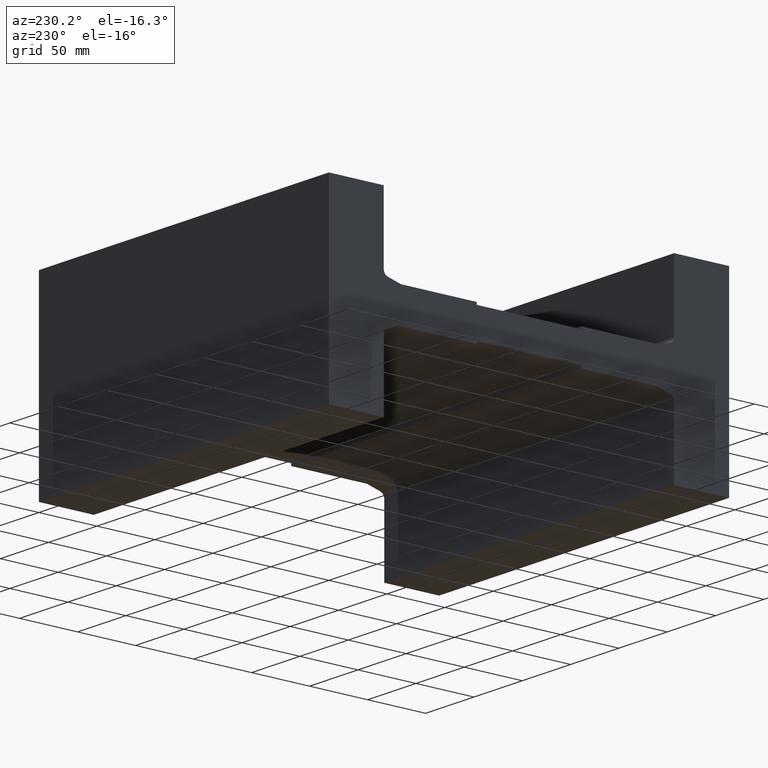
[diagram: clean part render]
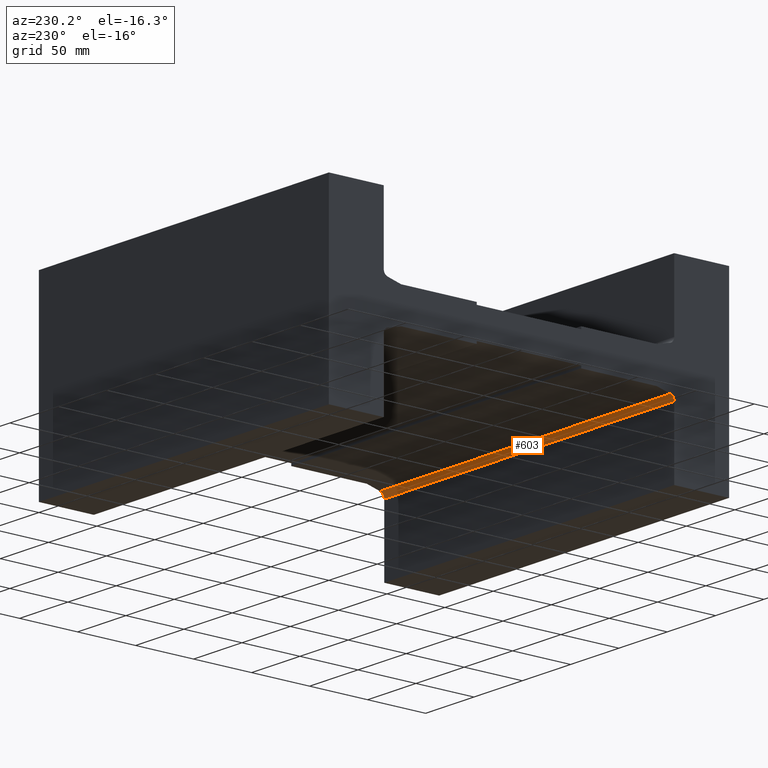
[diagram: same view with one face highlighted and labeled with its STEP entity id]
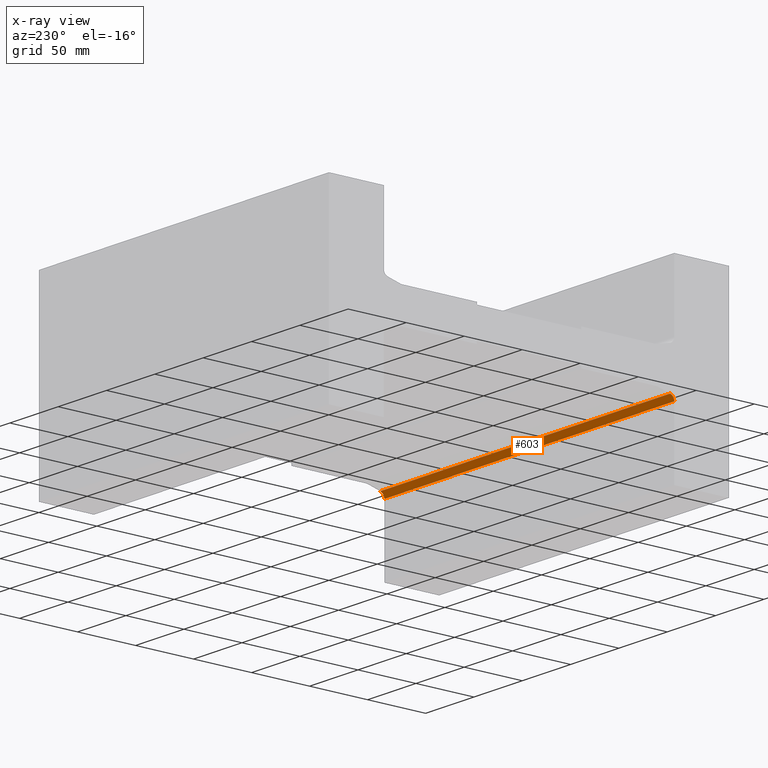
[diagram: x-ray of the same camera — body ghosted, the highlighted face saturated]
A machine part, auxiliary view. The second image highlights one B-rep face of the part: STEP entity #603.
The next image is the same camera in x-ray: the body ghosted, the highlighted face saturated — about 0% of this face is hidden behind the body in this view.
In plain terms, the highlighted cylindrical surface (edge-blend (fillet) strip) has radius 4.8 mm, axis along (1, -0, 0).
Its self-contained STEP definition (entity closure, byte-faithful):
#40=FACE_OUTER_BOUND('',#70,.T.);
#70=EDGE_LOOP('',(#400,#401,#402,#403));
#100=LINE('',#851,#176);
#101=LINE('',#854,#177);
#176=VECTOR('',#697,10.);
#177=VECTOR('',#700,10.);
#252=CIRCLE('',#654,4.8);
#253=CIRCLE('',#655,4.8);
#260=VERTEX_POINT('',#847);
#261=VERTEX_POINT('',#848);
#262=VERTEX_POINT('',#850);
#263=VERTEX_POINT('',#852);
#316=EDGE_CURVE('',#260,#261,#252,.T.);
#317=EDGE_CURVE('',#261,#262,#100,.T.);
#318=EDGE_CURVE('',#262,#263,#253,.T.);
#319=EDGE_CURVE('',#263,#260,#101,.T.);
#400=ORIENTED_EDGE('',*,*,#316,.T.);
#401=ORIENTED_EDGE('',*,*,#317,.T.);
#402=ORIENTED_EDGE('',*,*,#318,.T.);
#403=ORIENTED_EDGE('',*,*,#319,.T.);
#568=CYLINDRICAL_SURFACE('',#653,4.8);
#603=ADVANCED_FACE('',(#40),#568,.F.);
#653=AXIS2_PLACEMENT_3D('',#846,#693,#694);
#654=AXIS2_PLACEMENT_3D('',#849,#695,#696);
#655=AXIS2_PLACEMENT_3D('',#853,#698,#699);
#693=DIRECTION('center_axis',(1.,-1.69176980447317E-15,4.39325214218709E-16));
#694=DIRECTION('ref_axis',(-1.60961547058999E-15,-0.793353340291238,0.608761429008717));
#695=DIRECTION('center_axis',(-1.,1.69176980447317E-15,-4.39325214218709E-16));
#696=DIRECTION('ref_axis',(-1.60961547058999E-15,-0.793353340291238,0.608761429008717));
#697=DIRECTION('',(1.,-1.69176980447317E-15,4.39325214218709E-16));
#698=DIRECTION('center_axis',(1.,-1.69176980447317E-15,4.39325214218709E-16));
#699=DIRECTION('ref_axis',(-1.60961547058999E-15,-0.793353340291238,0.608761429008717));
#700=DIRECTION('',(-1.,1.69176980447317E-15,-4.39325214218709E-16));
#846=CARTESIAN_POINT('Origin',(-2.7009011166953E-13,-292.900000000001,-22.2024074287667));
#847=CARTESIAN_POINT('',(-2.78210606731001E-13,-297.700000000001,-22.2024074287667));
#848=CARTESIAN_POINT('',(-2.74228757185758E-13,-294.142331416493,-17.5659634625791));
#849=CARTESIAN_POINT('Origin',(-2.7009011166953E-13,-292.900000000001,-22.2024074287667));
#850=CARTESIAN_POINT('',(300.,-294.142331416494,-17.565963462579));
#851=CARTESIAN_POINT('',(-2.74228757185758E-13,-294.142331416493,-17.5659634625791));
#852=CARTESIAN_POINT('',(300.,-297.700000000002,-22.2024074287665));
#853=CARTESIAN_POINT('Origin',(300.,-292.900000000002,-22.2024074287665));
#854=CARTESIAN_POINT('',(-2.78210606731001E-13,-297.700000000001,-22.2024074287667));